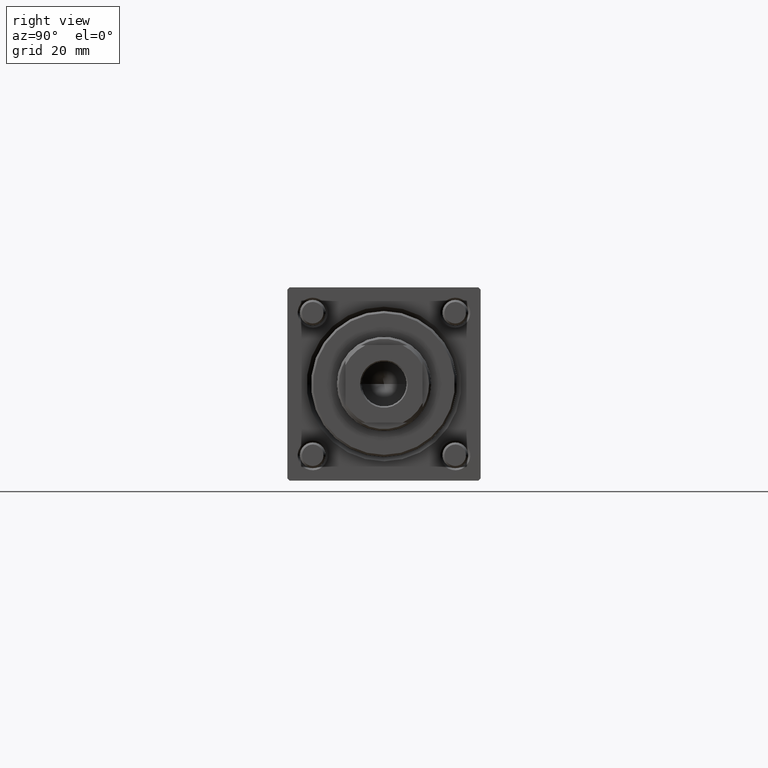
[diagram: clean part render]
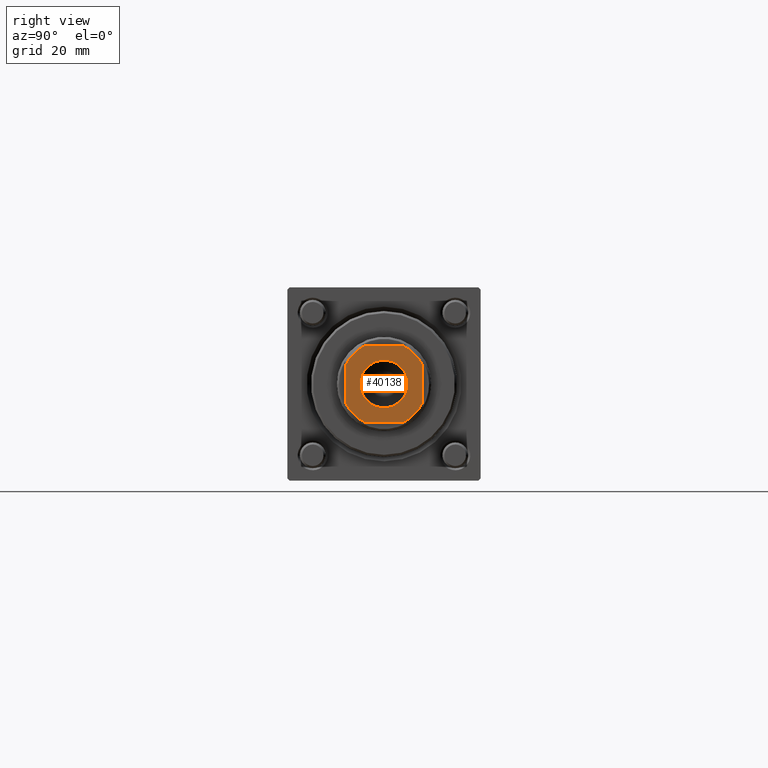
[diagram: same view with one face highlighted and labeled with its STEP entity id]
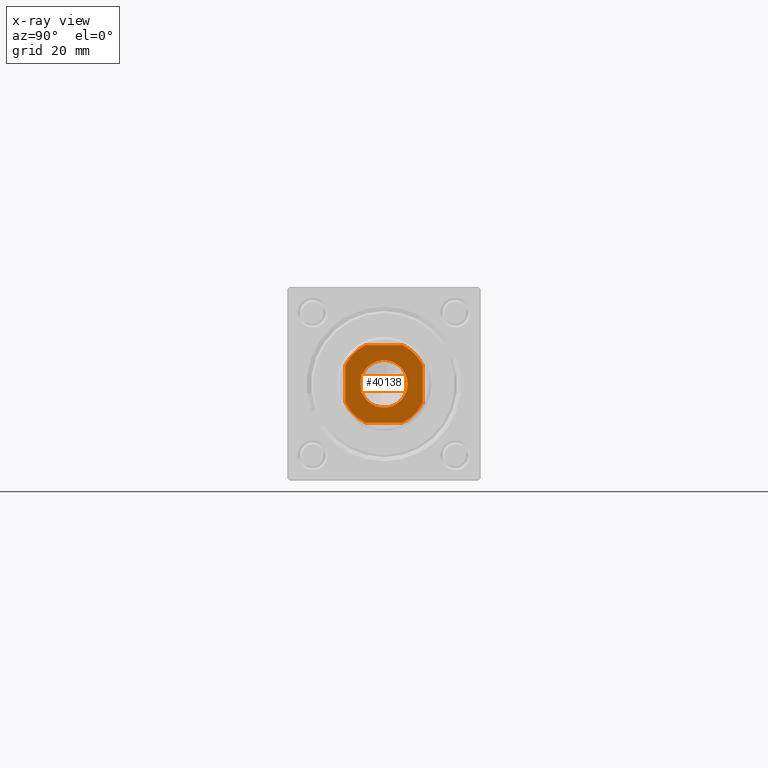
[diagram: x-ray of the same camera — body ghosted, the highlighted face saturated]
A machine part, right view. The second image highlights one B-rep face of the part: STEP entity #40138.
The next image is the same camera in x-ray: the body ghosted, the highlighted face saturated — about 0% of this face is hidden behind the body in this view.
In plain terms, the highlighted planar face has unit normal (1, 0, 0).
Its self-contained STEP definition (entity closure, byte-faithful):
#438 = CARTESIAN_POINT ( 'NONE',  ( 0.000000000000000000, 0.000000000000000000, 123.0000000000000000 ) ) ;
#752 = VERTEX_POINT ( 'NONE', #53630 ) ;
#915 = VECTOR ( 'NONE', #4073, 1000.000000000000000 ) ;
#929 = FACE_BOUND ( 'NONE', #5870, .T. ) ;
#1012 = VERTEX_POINT ( 'NONE', #9215 ) ;
#1080 = VERTEX_POINT ( 'NONE', #33034 ) ;
#2806 = EDGE_CURVE ( 'NONE', #48432, #752, #47198, .T. ) ;
#3333 = EDGE_LOOP ( 'NONE', ( #22225, #18632, #54666, #8714, #7492, #35983, #11518, #43864 ) ) ;
#3492 = CARTESIAN_POINT ( 'NONE',  ( -9.000000000000003553, 8.999999999999998224, 123.0000000000000000 ) ) ;
#4073 = DIRECTION ( 'NONE',  ( -1.000000000000000000, -0.000000000000000000, -0.000000000000000000 ) ) ;
#5268 = DIRECTION ( 'NONE',  ( 1.000000000000000000, 0.000000000000000000, 0.000000000000000000 ) ) ;
#5617 = CARTESIAN_POINT ( 'NONE',  ( 0.000000000000000000, 0.000000000000000000, 123.0000000000000000 ) ) ;
#5870 = EDGE_LOOP ( 'NONE', ( #23908, #55771 ) ) ;
#6318 = CIRCLE ( 'NONE', #21929, 9.999999999999998224 ) ;
#6568 = CARTESIAN_POINT ( 'NONE',  ( -4.358898943540671311, 8.999999999999998224, 123.0000000000000000 ) ) ;
#7107 = CARTESIAN_POINT ( 'NONE',  ( 8.999999999999996447, 8.999999999999998224, 123.0000000000000000 ) ) ;
#7185 = DIRECTION ( 'NONE',  ( 1.000000000000000000, 0.000000000000000000, 0.000000000000000000 ) ) ;
#7218 = CIRCLE ( 'NONE', #49459, 9.999999999999996447 ) ;
#7492 = ORIENTED_EDGE ( 'NONE', *, *, #2806, .T. ) ;
#8011 = VECTOR ( 'NONE', #50949, 1000.000000000000000 ) ;
#8714 = ORIENTED_EDGE ( 'NONE', *, *, #23586, .T. ) ;
#9215 = CARTESIAN_POINT ( 'NONE',  ( -5.550000000000013145, 6.796789735267826558E-16, 123.0000000000000000 ) ) ;
#9553 = CIRCLE ( 'NONE', #13184, 5.550000000000013145 ) ;
#10393 = DIRECTION ( 'NONE',  ( 1.000000000000000000, 0.000000000000000000, 0.000000000000000000 ) ) ;
#10707 = DIRECTION ( 'NONE',  ( -0.000000000000000000, 0.000000000000000000, 1.000000000000000000 ) ) ;
#11381 = VERTEX_POINT ( 'NONE', #15358 ) ;
#11518 = ORIENTED_EDGE ( 'NONE', *, *, #26183, .T. ) ;
#12946 = VECTOR ( 'NONE', #24661, 1000.000000000000000 ) ;
#13184 = AXIS2_PLACEMENT_3D ( 'NONE', #33900, #20688, #7185 ) ;
#13575 = EDGE_CURVE ( 'NONE', #752, #33494, #53341, .T. ) ;
#13633 = DIRECTION ( 'NONE',  ( 0.000000000000000000, -0.000000000000000000, -1.000000000000000000 ) ) ;
#13796 = VERTEX_POINT ( 'NONE', #45114 ) ;
#14138 = DIRECTION ( 'NONE',  ( -0.000000000000000000, 0.000000000000000000, 1.000000000000000000 ) ) ;
#14413 = PLANE ( 'NONE',  #36156 ) ;
#14564 = VERTEX_POINT ( 'NONE', #6568 ) ;
#15358 = CARTESIAN_POINT ( 'NONE',  ( 4.358898943540597593, 8.999999999999998224, 123.0000000000000000 ) ) ;
#16328 = EDGE_CURVE ( 'NONE', #53903, #11381, #47780, .T. ) ;
#17704 = DIRECTION ( 'NONE',  ( 1.000000000000000000, 0.000000000000000000, 0.000000000000000000 ) ) ;
#18463 = CARTESIAN_POINT ( 'NONE',  ( 0.000000000000000000, 0.000000000000000000, 123.0000000000000000 ) ) ;
#18632 = ORIENTED_EDGE ( 'NONE', *, *, #16328, .T. ) ;
#20459 = EDGE_CURVE ( 'NONE', #1080, #23201, #6318, .T. ) ;
#20688 = DIRECTION ( 'NONE',  ( 0.000000000000000000, -0.000000000000000000, -1.000000000000000000 ) ) ;
#20759 = LINE ( 'NONE', #29664, #915 ) ;
#21051 = VECTOR ( 'NONE', #54830, 1000.000000000000000 ) ;
#21341 = AXIS2_PLACEMENT_3D ( 'NONE', #438, #13633, #44398 ) ;
#21352 = CARTESIAN_POINT ( 'NONE',  ( -9.000000000000003553, 4.358898943540662430, 123.0000000000000000 ) ) ;
#21929 = AXIS2_PLACEMENT_3D ( 'NONE', #5617, #23170, #17704 ) ;
#22225 = ORIENTED_EDGE ( 'NONE', *, *, #33250, .T. ) ;
#23107 = CARTESIAN_POINT ( 'NONE',  ( 0.000000000000000000, 0.000000000000000000, 123.0000000000000000 ) ) ;
#23170 = DIRECTION ( 'NONE',  ( -0.000000000000000000, 0.000000000000000000, 1.000000000000000000 ) ) ;
#23201 = VERTEX_POINT ( 'NONE', #39044 ) ;
#23586 = EDGE_CURVE ( 'NONE', #14564, #48432, #7218, .T. ) ;
#23774 = CARTESIAN_POINT ( 'NONE',  ( 0.000000000000000000, 0.000000000000000000, 123.0000000000000000 ) ) ;
#23908 = ORIENTED_EDGE ( 'NONE', *, *, #46230, .T. ) ;
#24661 = DIRECTION ( 'NONE',  ( -1.927470528863119049E-16, 1.000000000000000000, -0.000000000000000000 ) ) ;
#26183 = EDGE_CURVE ( 'NONE', #33494, #1080, #46478, .T. ) ;
#26658 = EDGE_CURVE ( 'NONE', #11381, #14564, #20759, .T. ) ;
#28397 = LINE ( 'NONE', #7107, #12946 ) ;
#29664 = CARTESIAN_POINT ( 'NONE',  ( -9.000000000000003553, 8.999999999999998224, 123.0000000000000000 ) ) ;
#30043 = DIRECTION ( 'NONE',  ( 1.000000000000000000, 0.000000000000000000, 0.000000000000000000 ) ) ;
#30612 = DIRECTION ( 'NONE',  ( -0.000000000000000000, 0.000000000000000000, 1.000000000000000000 ) ) ;
#31422 = CIRCLE ( 'NONE', #21341, 5.550000000000013145 ) ;
#33034 = CARTESIAN_POINT ( 'NONE',  ( 4.358898943540667759, -9.000000000000001776, 123.0000000000000000 ) ) ;
#33250 = EDGE_CURVE ( 'NONE', #23201, #53903, #28397, .T. ) ;
#33494 = VERTEX_POINT ( 'NONE', #50465 ) ;
#33900 = CARTESIAN_POINT ( 'NONE',  ( 0.000000000000000000, 0.000000000000000000, 123.0000000000000000 ) ) ;
#35983 = ORIENTED_EDGE ( 'NONE', *, *, #13575, .T. ) ;
#36156 = AXIS2_PLACEMENT_3D ( 'NONE', #18463, #14138, #10393 ) ;
#36309 = EDGE_CURVE ( 'NONE', #1012, #13796, #31422, .T. ) ;
#36563 = FACE_OUTER_BOUND ( 'NONE', #3333, .T. ) ;
#37581 = CARTESIAN_POINT ( 'NONE',  ( -9.000000000000001776, -9.000000000000001776, 123.0000000000000000 ) ) ;
#39044 = CARTESIAN_POINT ( 'NONE',  ( 8.999999999999998224, -4.358898943540672200, 123.0000000000000000 ) ) ;
#40138 = ADVANCED_FACE ( 'NONE', ( #929, #36563 ), #14413, .T. ) ;
#41303 = DIRECTION ( 'NONE',  ( 1.000000000000000000, 0.000000000000000000, 0.000000000000000000 ) ) ;
#43267 = CARTESIAN_POINT ( 'NONE',  ( 0.000000000000000000, 0.000000000000000000, 123.0000000000000000 ) ) ;
#43864 = ORIENTED_EDGE ( 'NONE', *, *, #20459, .T. ) ;
#44398 = DIRECTION ( 'NONE',  ( 1.000000000000000000, 0.000000000000000000, 0.000000000000000000 ) ) ;
#45114 = CARTESIAN_POINT ( 'NONE',  ( 5.550000000000013145, 0.000000000000000000, 123.0000000000000000 ) ) ;
#45966 = AXIS2_PLACEMENT_3D ( 'NONE', #43267, #30612, #30043 ) ;
#46230 = EDGE_CURVE ( 'NONE', #13796, #1012, #9553, .T. ) ;
#46478 = LINE ( 'NONE', #37581, #21051 ) ;
#47198 = LINE ( 'NONE', #3492, #8011 ) ;
#47780 = CIRCLE ( 'NONE', #50538, 9.999999999999966249 ) ;
#48432 = VERTEX_POINT ( 'NONE', #21352 ) ;
#49459 = AXIS2_PLACEMENT_3D ( 'NONE', #23107, #10707, #5268 ) ;
#50216 = DIRECTION ( 'NONE',  ( -0.000000000000000000, 0.000000000000000000, 1.000000000000000000 ) ) ;
#50465 = CARTESIAN_POINT ( 'NONE',  ( -4.358898943540667759, -9.000000000000001776, 123.0000000000000000 ) ) ;
#50538 = AXIS2_PLACEMENT_3D ( 'NONE', #23774, #50216, #41303 ) ;
#50888 = CARTESIAN_POINT ( 'NONE',  ( 8.999999999999998224, 4.358898943540600257, 123.0000000000000000 ) ) ;
#50949 = DIRECTION ( 'NONE',  ( 9.637352644315595243E-17, -1.000000000000000000, 0.000000000000000000 ) ) ;
#53341 = CIRCLE ( 'NONE', #45966, 9.999999999999998224 ) ;
#53630 = CARTESIAN_POINT ( 'NONE',  ( -9.000000000000003553, -4.358898943540665094, 123.0000000000000000 ) ) ;
#53903 = VERTEX_POINT ( 'NONE', #50888 ) ;
#54666 = ORIENTED_EDGE ( 'NONE', *, *, #26658, .T. ) ;
#54830 = DIRECTION ( 'NONE',  ( 1.000000000000000000, 0.000000000000000000, 0.000000000000000000 ) ) ;
#55771 = ORIENTED_EDGE ( 'NONE', *, *, #36309, .T. ) ;